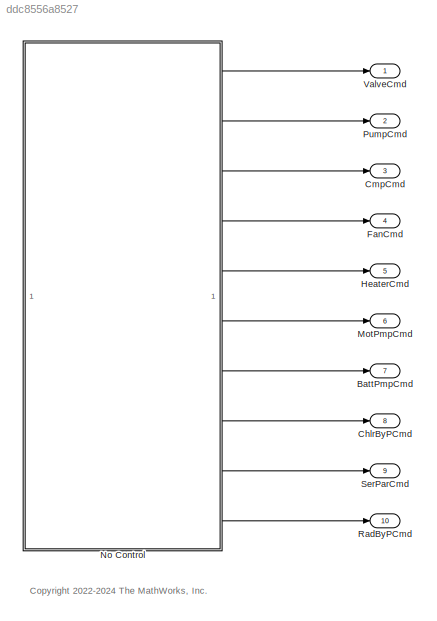
MODEL slx_ddc8556a8527
KIND model
CONFIG AbsTol = auto
CONFIG EnableMultiTasking = off
CONFIG FixedStep = 0.1
CONFIG MaxStep = auto
CONFIG MinStep = auto
CONFIG RelTol = 1e-3
CONFIG SampleTimeConstraint = Unconstrained
CONFIG SolverName = FixedStepDiscrete
CONFIG StartTime = 0.0
CONFIG StopTime = 10000
BLOCK [Outport] BattPmpCmd
  Port = 7
BLOCK [Outport] ChlrByPCmd
  Port = 8
BLOCK [Outport] CmpCmd
  Port = 3
BLOCK [Outport] FanCmd
  Port = 4
BLOCK [Outport] HeaterCmd
  Port = 5
BLOCK [Outport] MotPmpCmd
  Port = 6
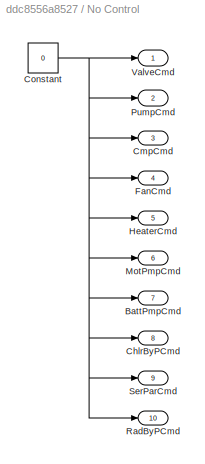
BLOCK [SubSystem] No Control
  VariantControl = No Control
BLOCK [Outport] No Control/BattPmpCmd
  Port = 7
BLOCK [Outport] No Control/ChlrByPCmd
  Port = 8
BLOCK [Outport] No Control/CmpCmd
  Port = 3
BLOCK [Constant] No Control/Constant
  SampleTime = -1
  Value = 0
BLOCK [Outport] No Control/FanCmd
  Port = 4
BLOCK [Outport] No Control/HeaterCmd
  Port = 5
BLOCK [Outport] No Control/MotPmpCmd
  Port = 6
BLOCK [Outport] No Control/PumpCmd
  Port = 2
BLOCK [Outport] No Control/RadByPCmd
  Port = 10
BLOCK [Outport] No Control/SerParCmd
  Port = 9
BLOCK [Outport] No Control/ValveCmd
BLOCK [Outport] PumpCmd
  Port = 2
BLOCK [Outport] RadByPCmd
  Port = 10
BLOCK [Outport] SerParCmd
  Port = 9
BLOCK [Outport] ValveCmd
ANNOTATION (root): <copyright redacted>
NET No Control/Constant:1 -> No Control/BattPmpCmd:1, No Control/ChlrByPCmd:1, No Control/CmpCmd:1, No Control/FanCmd:1, No Control/HeaterCmd:1, No Control/MotPmpCmd:1, No Control/PumpCmd:1, No Control/RadByPCmd:1, No Control/SerParCmd:1, No Control/ValveCmd:1
LINE No Control:1 -> ValveCmd:1
LINE No Control:10 -> RadByPCmd:1
LINE No Control:2 -> PumpCmd:1
LINE No Control:3 -> CmpCmd:1
LINE No Control:4 -> FanCmd:1
LINE No Control:5 -> HeaterCmd:1
LINE No Control:6 -> MotPmpCmd:1
LINE No Control:7 -> BattPmpCmd:1
LINE No Control:8 -> ChlrByPCmd:1
LINE No Control:9 -> SerParCmd:1
note: NET lines group one-source signal fan-out (src -> all destinations, sorted); 1:1 wires keep LINE
